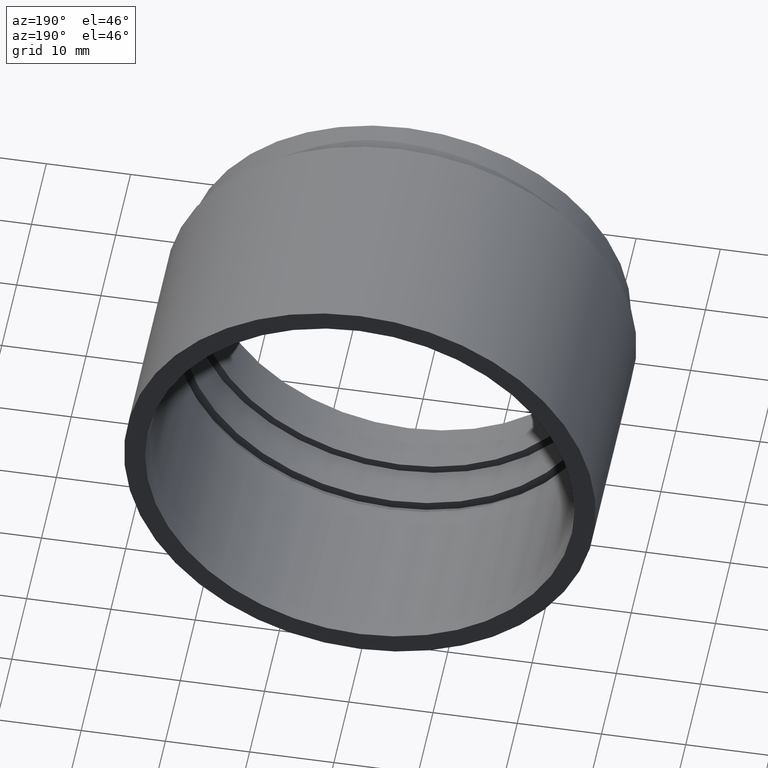
[diagram: clean part render]
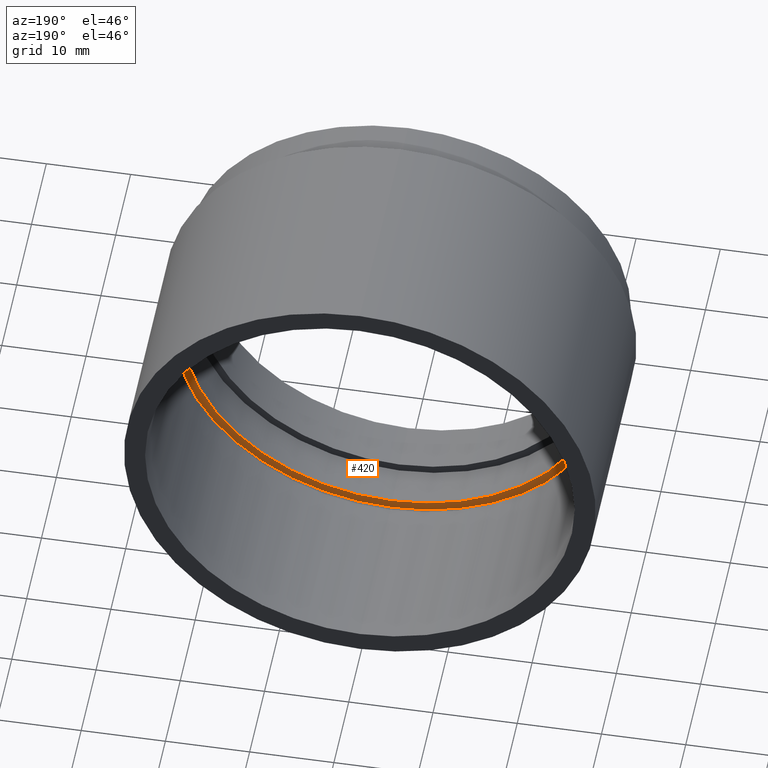
[diagram: same view with one face highlighted and labeled with its STEP entity id]
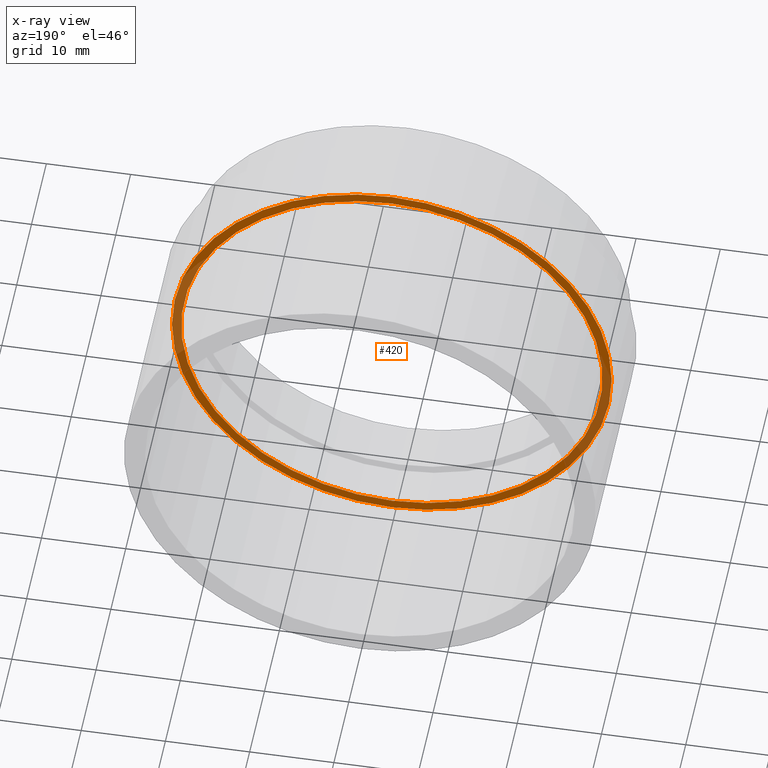
[diagram: x-ray of the same camera — body ghosted, the highlighted face saturated]
A machine part, auxiliary view. The second image highlights one B-rep face of the part: STEP entity #420.
The next image is the same camera in x-ray: the body ghosted, the highlighted face saturated — about 23% of this face is hidden behind the body in this view.
In plain terms, the highlighted planar face has unit normal (0, 1, 0).
Its self-contained STEP definition (entity closure, byte-faithful):
#18 = ORIENTED_EDGE ( 'NONE', *, *, #443, .F. ) ;
#44 = CARTESIAN_POINT ( 'NONE',  ( 0.0000000000000000000, 11.00000000000000200, 0.0000000000000000000 ) ) ;
#59 = AXIS2_PLACEMENT_3D ( 'NONE', #283, #263, #177 ) ;
#90 = DIRECTION ( 'NONE',  ( 0.0000000000000000000, -0.0000000000000000000, 1.000000000000000000 ) ) ;
#96 = CARTESIAN_POINT ( 'NONE',  ( 3.196328145774592300E-015, 11.00000000000000200, 26.10000000000000100 ) ) ;
#110 = VERTEX_POINT ( 'NONE', #372 ) ;
#115 = EDGE_CURVE ( 'NONE', #417, #110, #513, .T. ) ;
#118 = CARTESIAN_POINT ( 'NONE',  ( 26.10000000000000100, 11.00000000000000200, 0.0000000000000000000 ) ) ;
#155 = CARTESIAN_POINT ( 'NONE',  ( 0.0000000000000000000, 11.00000000000000200, -25.00000000000000000 ) ) ;
#162 = CARTESIAN_POINT ( 'NONE',  ( 0.0000000000000000000, 11.00000000000000200, 0.0000000000000000000 ) ) ;
#171 = DIRECTION ( 'NONE',  ( 0.0000000000000000000, 1.000000000000000000, 0.0000000000000000000 ) ) ;
#177 = DIRECTION ( 'NONE',  ( 0.0000000000000000000, 0.0000000000000000000, -1.000000000000000000 ) ) ;
#196 = DIRECTION ( 'NONE',  ( 0.0000000000000000000, 0.0000000000000000000, -1.000000000000000000 ) ) ;
#198 = AXIS2_PLACEMENT_3D ( 'NONE', #162, #397, #196 ) ;
#212 = CIRCLE ( 'NONE', #493, 26.10000000000000100 ) ;
#213 = FACE_BOUND ( 'NONE', #605, .T. ) ;
#222 = DIRECTION ( 'NONE',  ( -0.0000000000000000000, -1.000000000000000000, -0.0000000000000000000 ) ) ;
#263 = DIRECTION ( 'NONE',  ( -0.0000000000000000000, -1.000000000000000000, -0.0000000000000000000 ) ) ;
#266 = EDGE_CURVE ( 'NONE', #110, #417, #597, .T. ) ;
#283 = CARTESIAN_POINT ( 'NONE',  ( 0.0000000000000000000, 11.00000000000000200, 0.0000000000000000000 ) ) ;
#339 = VERTEX_POINT ( 'NONE', #518 ) ;
#346 = VERTEX_POINT ( 'NONE', #96 ) ;
#369 = DIRECTION ( 'NONE',  ( -0.0000000000000000000, -1.000000000000000000, -0.0000000000000000000 ) ) ;
#372 = CARTESIAN_POINT ( 'NONE',  ( 3.061616997868383000E-015, 11.00000000000000200, 25.00000000000000000 ) ) ;
#396 = CIRCLE ( 'NONE', #59, 26.10000000000000100 ) ;
#397 = DIRECTION ( 'NONE',  ( -0.0000000000000000000, -1.000000000000000000, -0.0000000000000000000 ) ) ;
#417 = VERTEX_POINT ( 'NONE', #155 ) ;
#420 = ADVANCED_FACE ( 'NONE', ( #213, #429 ), #607, .T. ) ;
#429 = FACE_OUTER_BOUND ( 'NONE', #586, .T. ) ;
#440 = AXIS2_PLACEMENT_3D ( 'NONE', #560, #369, #642 ) ;
#443 = EDGE_CURVE ( 'NONE', #339, #346, #212, .T. ) ;
#469 = AXIS2_PLACEMENT_3D ( 'NONE', #118, #171, #90 ) ;
#493 = AXIS2_PLACEMENT_3D ( 'NONE', #44, #222, #616 ) ;
#513 = CIRCLE ( 'NONE', #198, 25.00000000000000000 ) ;
#518 = CARTESIAN_POINT ( 'NONE',  ( 0.0000000000000000000, 11.00000000000000200, -26.10000000000000100 ) ) ;
#551 = ORIENTED_EDGE ( 'NONE', *, *, #266, .T. ) ;
#552 = EDGE_CURVE ( 'NONE', #346, #339, #396, .T. ) ;
#560 = CARTESIAN_POINT ( 'NONE',  ( 0.0000000000000000000, 11.00000000000000200, 0.0000000000000000000 ) ) ;
#586 = EDGE_LOOP ( 'NONE', ( #18, #620 ) ) ;
#597 = CIRCLE ( 'NONE', #440, 25.00000000000000000 ) ;
#605 = EDGE_LOOP ( 'NONE', ( #633, #551 ) ) ;
#607 = PLANE ( 'NONE',  #469 ) ;
#616 = DIRECTION ( 'NONE',  ( 0.0000000000000000000, 0.0000000000000000000, -1.000000000000000000 ) ) ;
#620 = ORIENTED_EDGE ( 'NONE', *, *, #552, .F. ) ;
#633 = ORIENTED_EDGE ( 'NONE', *, *, #115, .T. ) ;
#642 = DIRECTION ( 'NONE',  ( 0.0000000000000000000, 0.0000000000000000000, -1.000000000000000000 ) ) ;